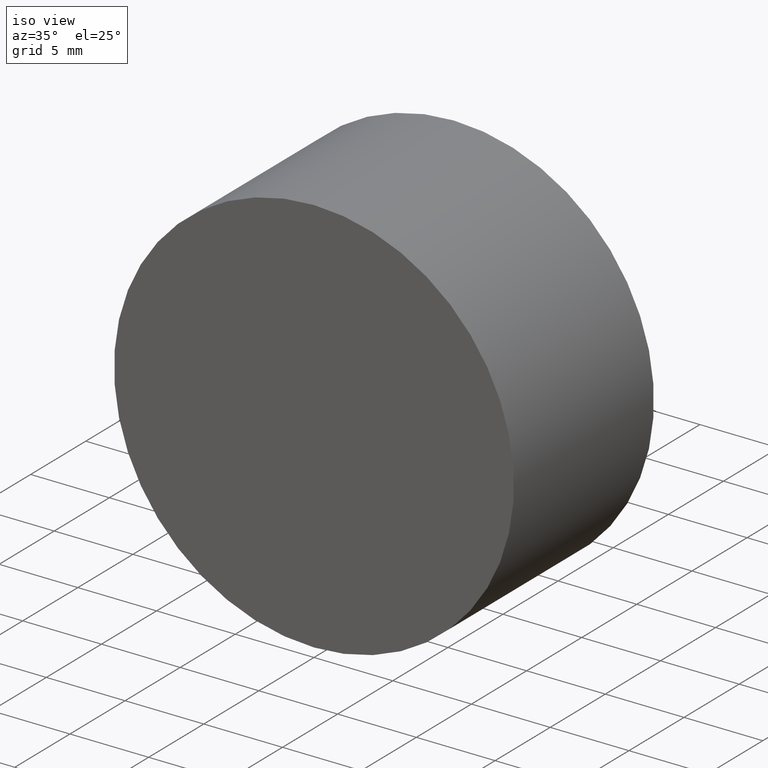
[diagram: clean part render]
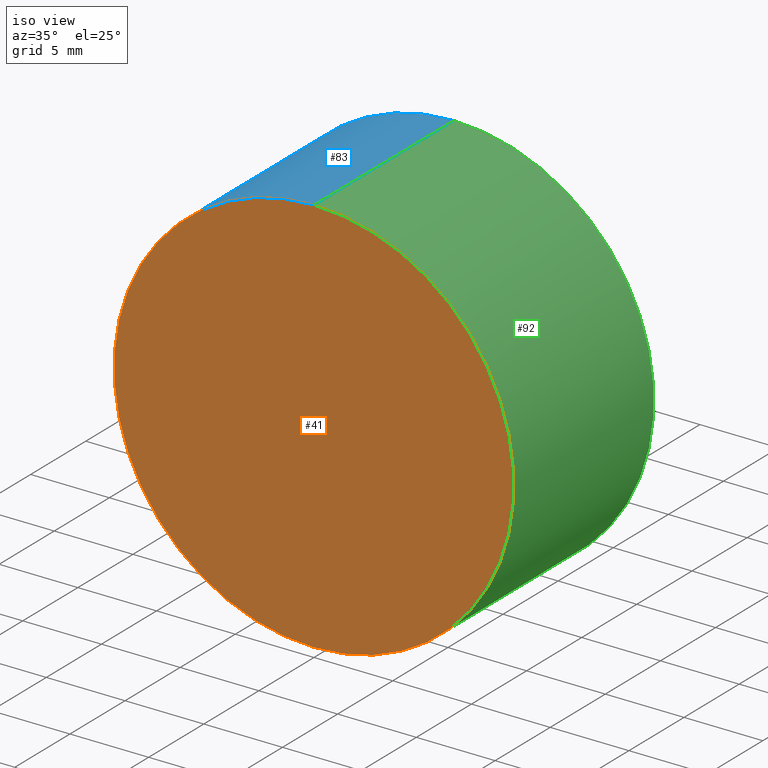
[diagram: same view with three faces highlighted in distinct colors, each labeled with its STEP entity id]
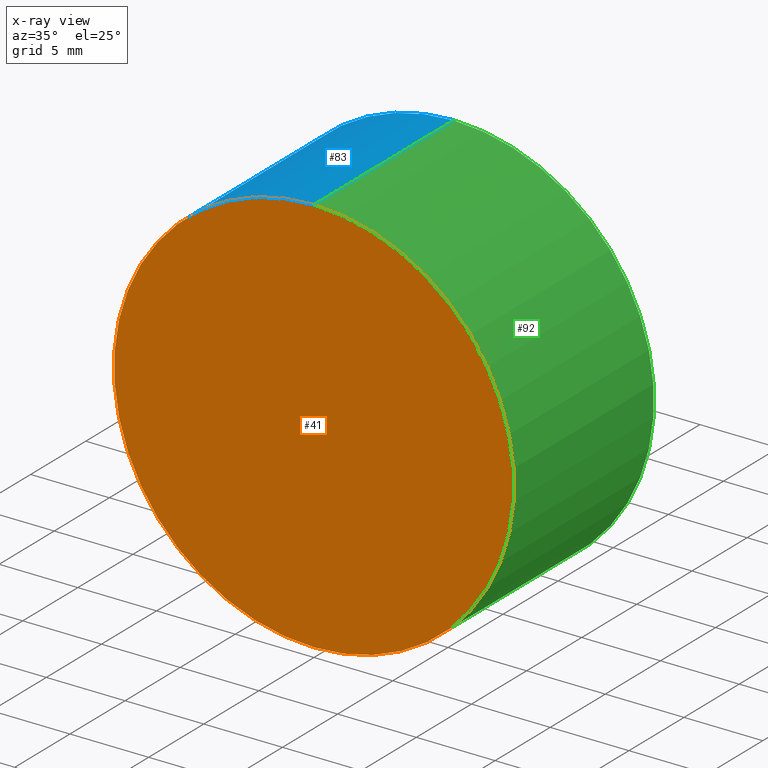
[diagram: x-ray of the same camera — body ghosted, the three highlighted faces saturated]
A machine part, iso view with three faces highlighted in distinct colors.
The next image is the same camera in x-ray (body ghosted, the three faces saturated) — at least one of them is partly hidden behind the body in this view.
Their STEP definitions:

[orange] entity #41 — the highlighted planar face has unit normal (0, 1, 0).
#10 = EDGE_CURVE ( 'NONE', #14, #76, #82, .T. ) ;
#14 = VERTEX_POINT ( 'NONE', #112 ) ;
#17 = PLANE ( 'NONE',  #44 ) ;
#18 = DIRECTION ( 'NONE',  ( 0.0000000000000000000, 1.000000000000000000, 0.0000000000000000000 ) ) ;
#23 = EDGE_CURVE ( 'NONE', #76, #14, #56, .T. ) ;
#36 = CARTESIAN_POINT ( 'NONE',  ( 0.0000000000000000000, 0.0000000000000000000, -12.69999999999999900 ) ) ;
#37 = DIRECTION ( 'NONE',  ( 0.0000000000000000000, 1.000000000000000000, 0.0000000000000000000 ) ) ;
#41 = ADVANCED_FACE ( 'NONE', ( #58 ), #17, .F. ) ;
#44 = AXIS2_PLACEMENT_3D ( 'NONE', #120, #49, #119 ) ;
#49 = DIRECTION ( 'NONE',  ( 0.0000000000000000000, 1.000000000000000000, 0.0000000000000000000 ) ) ;
#50 = CARTESIAN_POINT ( 'NONE',  ( 0.0000000000000000000, 0.0000000000000000000, 0.0000000000000000000 ) ) ;
#56 = CIRCLE ( 'NONE', #114, 12.69999999999999900 ) ;
#58 = FACE_OUTER_BOUND ( 'NONE', #132, .T. ) ;
#75 = ORIENTED_EDGE ( 'NONE', *, *, #10, .F. ) ;
#76 = VERTEX_POINT ( 'NONE', #36 ) ;
#82 = CIRCLE ( 'NONE', #125, 12.69999999999999900 ) ;
#90 = DIRECTION ( 'NONE',  ( 0.0000000000000000000, 0.0000000000000000000, 1.000000000000000000 ) ) ;
#102 = CARTESIAN_POINT ( 'NONE',  ( 0.0000000000000000000, 0.0000000000000000000, 0.0000000000000000000 ) ) ;
#106 = ORIENTED_EDGE ( 'NONE', *, *, #23, .F. ) ;
#111 = DIRECTION ( 'NONE',  ( 0.0000000000000000000, 0.0000000000000000000, 1.000000000000000000 ) ) ;
#112 = CARTESIAN_POINT ( 'NONE',  ( 1.555301434917138400E-015, 0.0000000000000000000, 12.69999999999999900 ) ) ;
#114 = AXIS2_PLACEMENT_3D ( 'NONE', #50, #37, #111 ) ;
#119 = DIRECTION ( 'NONE',  ( 0.0000000000000000000, -0.0000000000000000000, 1.000000000000000000 ) ) ;
#120 = CARTESIAN_POINT ( 'NONE',  ( 0.0000000000000000000, 0.0000000000000000000, 0.0000000000000000000 ) ) ;
#125 = AXIS2_PLACEMENT_3D ( 'NONE', #102, #18, #90 ) ;
#132 = EDGE_LOOP ( 'NONE', ( #106, #75 ) ) ;

[blue] entity #83 — the highlighted cylindrical surface (partial cylindrical patch) has radius 12.7 mm, axis along (-0, -1, -0).
#1 = LINE ( 'NONE', #29, #30 ) ;
#5 = CARTESIAN_POINT ( 'NONE',  ( 0.0000000000000000000, 12.69999999999999900, 0.0000000000000000000 ) ) ;
#6 = DIRECTION ( 'NONE',  ( -0.0000000000000000000, -1.000000000000000000, -0.0000000000000000000 ) ) ;
#14 = VERTEX_POINT ( 'NONE', #112 ) ;
#15 = EDGE_CURVE ( 'NONE', #77, #76, #1, .T. ) ;
#19 = VERTEX_POINT ( 'NONE', #139 ) ;
#21 = EDGE_LOOP ( 'NONE', ( #136, #123, #54, #52 ) ) ;
#22 = VECTOR ( 'NONE', #6, 1000.000000000000000 ) ;
#23 = EDGE_CURVE ( 'NONE', #76, #14, #56, .T. ) ;
#25 = AXIS2_PLACEMENT_3D ( 'NONE', #5, #60, #134 ) ;
#29 = CARTESIAN_POINT ( 'NONE',  ( 0.0000000000000000000, 12.69999999999999900, -12.69999999999999900 ) ) ;
#30 = VECTOR ( 'NONE', #80, 1000.000000000000000 ) ;
#32 = EDGE_CURVE ( 'NONE', #19, #14, #109, .T. ) ;
#35 = EDGE_CURVE ( 'NONE', #77, #19, #107, .T. ) ;
#36 = CARTESIAN_POINT ( 'NONE',  ( 0.0000000000000000000, 0.0000000000000000000, -12.69999999999999900 ) ) ;
#37 = DIRECTION ( 'NONE',  ( 0.0000000000000000000, 1.000000000000000000, 0.0000000000000000000 ) ) ;
#42 = CYLINDRICAL_SURFACE ( 'NONE', #117, 12.69999999999999900 ) ;
#50 = CARTESIAN_POINT ( 'NONE',  ( 0.0000000000000000000, 0.0000000000000000000, 0.0000000000000000000 ) ) ;
#52 = ORIENTED_EDGE ( 'NONE', *, *, #23, .T. ) ;
#54 = ORIENTED_EDGE ( 'NONE', *, *, #15, .T. ) ;
#56 = CIRCLE ( 'NONE', #114, 12.69999999999999900 ) ;
#60 = DIRECTION ( 'NONE',  ( 0.0000000000000000000, 1.000000000000000000, 0.0000000000000000000 ) ) ;
#67 = FACE_OUTER_BOUND ( 'NONE', #21, .T. ) ;
#71 = CARTESIAN_POINT ( 'NONE',  ( 0.0000000000000000000, 12.69999999999999900, -12.69999999999999900 ) ) ;
#72 = CARTESIAN_POINT ( 'NONE',  ( 1.555301434917138400E-015, 12.69999999999999900, 12.69999999999999900 ) ) ;
#76 = VERTEX_POINT ( 'NONE', #36 ) ;
#77 = VERTEX_POINT ( 'NONE', #71 ) ;
#80 = DIRECTION ( 'NONE',  ( -0.0000000000000000000, -1.000000000000000000, -0.0000000000000000000 ) ) ;
#83 = ADVANCED_FACE ( 'NONE', ( #67 ), #42, .T. ) ;
#88 = DIRECTION ( 'NONE',  ( -0.0000000000000000000, -1.000000000000000000, -0.0000000000000000000 ) ) ;
#99 = CARTESIAN_POINT ( 'NONE',  ( 0.0000000000000000000, 12.69999999999999900, 0.0000000000000000000 ) ) ;
#107 = CIRCLE ( 'NONE', #25, 12.69999999999999900 ) ;
#109 = LINE ( 'NONE', #72, #22 ) ;
#111 = DIRECTION ( 'NONE',  ( 0.0000000000000000000, 0.0000000000000000000, 1.000000000000000000 ) ) ;
#112 = CARTESIAN_POINT ( 'NONE',  ( 1.555301434917138400E-015, 0.0000000000000000000, 12.69999999999999900 ) ) ;
#114 = AXIS2_PLACEMENT_3D ( 'NONE', #50, #37, #111 ) ;
#117 = AXIS2_PLACEMENT_3D ( 'NONE', #99, #88, #118 ) ;
#118 = DIRECTION ( 'NONE',  ( 0.0000000000000000000, 0.0000000000000000000, -1.000000000000000000 ) ) ;
#123 = ORIENTED_EDGE ( 'NONE', *, *, #35, .F. ) ;
#134 = DIRECTION ( 'NONE',  ( 0.0000000000000000000, 0.0000000000000000000, 1.000000000000000000 ) ) ;
#136 = ORIENTED_EDGE ( 'NONE', *, *, #32, .F. ) ;
#139 = CARTESIAN_POINT ( 'NONE',  ( 1.555301434917138400E-015, 12.69999999999999900, 12.69999999999999900 ) ) ;

[green] entity #92 — the highlighted cylindrical surface (partial cylindrical patch) has radius 12.7 mm, axis along (-0, -1, -0).
#1 = LINE ( 'NONE', #29, #30 ) ;
#2 = EDGE_CURVE ( 'NONE', #19, #77, #26, .T. ) ;
#6 = DIRECTION ( 'NONE',  ( -0.0000000000000000000, -1.000000000000000000, -0.0000000000000000000 ) ) ;
#10 = EDGE_CURVE ( 'NONE', #14, #76, #82, .T. ) ;
#12 = FACE_OUTER_BOUND ( 'NONE', #46, .T. ) ;
#14 = VERTEX_POINT ( 'NONE', #112 ) ;
#15 = EDGE_CURVE ( 'NONE', #77, #76, #1, .T. ) ;
#18 = DIRECTION ( 'NONE',  ( 0.0000000000000000000, 1.000000000000000000, 0.0000000000000000000 ) ) ;
#19 = VERTEX_POINT ( 'NONE', #139 ) ;
#22 = VECTOR ( 'NONE', #6, 1000.000000000000000 ) ;
#26 = CIRCLE ( 'NONE', #131, 12.69999999999999900 ) ;
#27 = DIRECTION ( 'NONE',  ( 0.0000000000000000000, 1.000000000000000000, 0.0000000000000000000 ) ) ;
#29 = CARTESIAN_POINT ( 'NONE',  ( 0.0000000000000000000, 12.69999999999999900, -12.69999999999999900 ) ) ;
#30 = VECTOR ( 'NONE', #80, 1000.000000000000000 ) ;
#32 = EDGE_CURVE ( 'NONE', #19, #14, #109, .T. ) ;
#36 = CARTESIAN_POINT ( 'NONE',  ( 0.0000000000000000000, 0.0000000000000000000, -12.69999999999999900 ) ) ;
#39 = DIRECTION ( 'NONE',  ( 0.0000000000000000000, 0.0000000000000000000, 1.000000000000000000 ) ) ;
#40 = DIRECTION ( 'NONE',  ( -0.0000000000000000000, -1.000000000000000000, -0.0000000000000000000 ) ) ;
#43 = ORIENTED_EDGE ( 'NONE', *, *, #15, .F. ) ;
#46 = EDGE_LOOP ( 'NONE', ( #129, #138, #103, #43 ) ) ;
#55 = AXIS2_PLACEMENT_3D ( 'NONE', #59, #40, #133 ) ;
#59 = CARTESIAN_POINT ( 'NONE',  ( 0.0000000000000000000, 12.69999999999999900, 0.0000000000000000000 ) ) ;
#65 = CYLINDRICAL_SURFACE ( 'NONE', #55, 12.69999999999999900 ) ;
#71 = CARTESIAN_POINT ( 'NONE',  ( 0.0000000000000000000, 12.69999999999999900, -12.69999999999999900 ) ) ;
#72 = CARTESIAN_POINT ( 'NONE',  ( 1.555301434917138400E-015, 12.69999999999999900, 12.69999999999999900 ) ) ;
#76 = VERTEX_POINT ( 'NONE', #36 ) ;
#77 = VERTEX_POINT ( 'NONE', #71 ) ;
#80 = DIRECTION ( 'NONE',  ( -0.0000000000000000000, -1.000000000000000000, -0.0000000000000000000 ) ) ;
#82 = CIRCLE ( 'NONE', #125, 12.69999999999999900 ) ;
#90 = DIRECTION ( 'NONE',  ( 0.0000000000000000000, 0.0000000000000000000, 1.000000000000000000 ) ) ;
#92 = ADVANCED_FACE ( 'NONE', ( #12 ), #65, .T. ) ;
#102 = CARTESIAN_POINT ( 'NONE',  ( 0.0000000000000000000, 0.0000000000000000000, 0.0000000000000000000 ) ) ;
#103 = ORIENTED_EDGE ( 'NONE', *, *, #10, .T. ) ;
#109 = LINE ( 'NONE', #72, #22 ) ;
#112 = CARTESIAN_POINT ( 'NONE',  ( 1.555301434917138400E-015, 0.0000000000000000000, 12.69999999999999900 ) ) ;
#116 = CARTESIAN_POINT ( 'NONE',  ( 0.0000000000000000000, 12.69999999999999900, 0.0000000000000000000 ) ) ;
#125 = AXIS2_PLACEMENT_3D ( 'NONE', #102, #18, #90 ) ;
#129 = ORIENTED_EDGE ( 'NONE', *, *, #2, .F. ) ;
#131 = AXIS2_PLACEMENT_3D ( 'NONE', #116, #27, #39 ) ;
#133 = DIRECTION ( 'NONE',  ( 0.0000000000000000000, 0.0000000000000000000, -1.000000000000000000 ) ) ;
#138 = ORIENTED_EDGE ( 'NONE', *, *, #32, .T. ) ;
#139 = CARTESIAN_POINT ( 'NONE',  ( 1.555301434917138400E-015, 12.69999999999999900, 12.69999999999999900 ) ) ;